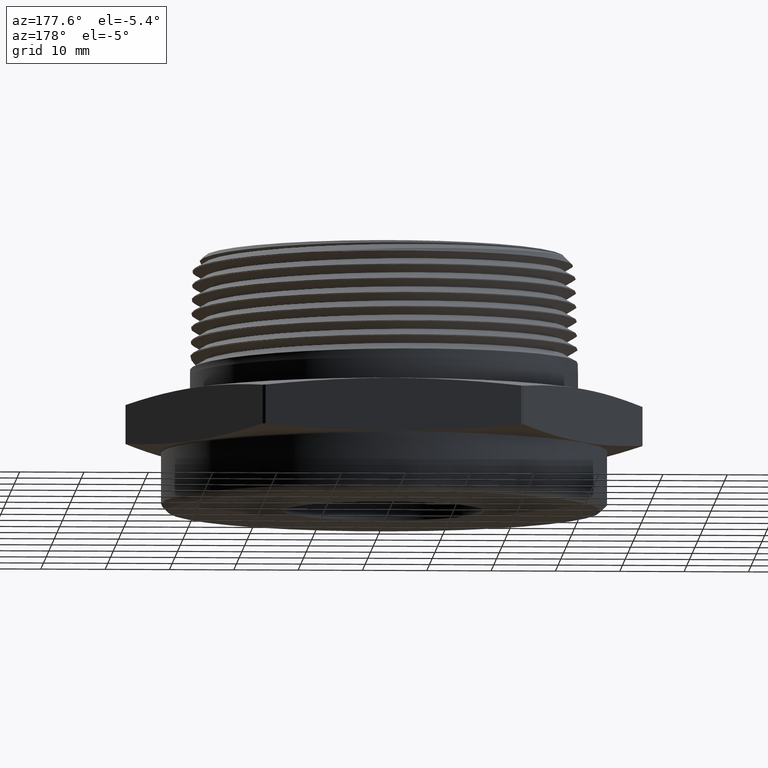
[diagram: clean part render]
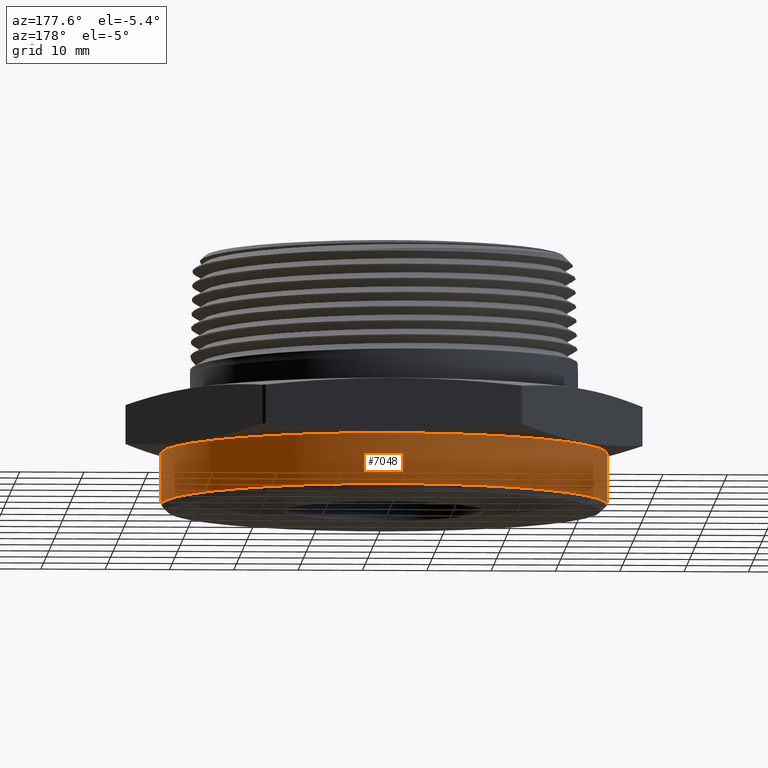
[diagram: same view with one face highlighted and labeled with its STEP entity id]
A machine part, auxiliary view. The second image highlights one B-rep face of the part: STEP entity #7048.
In plain terms, the highlighted cylindrical surface (partial cylindrical patch) has radius 34.671 mm, axis along (0, 0, 1).
Its self-contained STEP definition (entity closure, byte-faithful):
#402 = AXIS2_PLACEMENT_3D ( 'NONE', #5405, #5406, #5407 ) ;
#2903 = ORIENTED_EDGE ( 'NONE', *, *, #4848, .T. ) ;
#2904 = ORIENTED_EDGE ( 'NONE', *, *, #7059, .T. ) ;
#3046 = VECTOR ( 'NONE', #6785, 39.37007874015748100 ) ;
#3200 = VERTEX_POINT ( 'NONE', #8013 ) ;
#3204 = VERTEX_POINT ( 'NONE', #8005 ) ;
#3206 = VERTEX_POINT ( 'NONE', #7997 ) ;
#3207 = VERTEX_POINT ( 'NONE', #8008 ) ;
#3357 = EDGE_LOOP ( 'NONE', ( #2903, #2904, #7953, #7972 ) ) ;
#4848 = EDGE_CURVE ( 'NONE', #3207, #3206, #7125, .T. ) ;
#5405 = CARTESIAN_POINT ( 'NONE',  ( 0.0000000000000000000, 0.0000000000000000000, -0.3199999999999985100 ) ) ;
#5406 = DIRECTION ( 'NONE',  ( 0.0000000000000000000, 0.0000000000000000000, 1.000000000000000000 ) ) ;
#5407 = DIRECTION ( 'NONE',  ( -1.000000000000000000, 0.0000000000000000000, 0.0000000000000000000 ) ) ;
#5511 = AXIS2_PLACEMENT_3D ( 'NONE', #6759, #6760, #6758 ) ;
#5519 = AXIS2_PLACEMENT_3D ( 'NONE', #6795, #6796, #6797 ) ;
#6758 = DIRECTION ( 'NONE',  ( 1.000000000000000000, 0.0000000000000000000, 0.0000000000000000000 ) ) ;
#6759 = CARTESIAN_POINT ( 'NONE',  ( 0.0000000000000000000, 0.0000000000000000000, -0.3599999999999999900 ) ) ;
#6760 = DIRECTION ( 'NONE',  ( -0.0000000000000000000, -0.0000000000000000000, 1.000000000000000000 ) ) ;
#6781 = CARTESIAN_POINT ( 'NONE',  ( 1.365000000000000000, 0.0000000000000000000, -0.3599999999999999900 ) ) ;
#6785 = DIRECTION ( 'NONE',  ( -0.0000000000000000000, -0.0000000000000000000, 1.000000000000000000 ) ) ;
#6789 = DIRECTION ( 'NONE',  ( -0.0000000000000000000, -0.0000000000000000000, 1.000000000000000000 ) ) ;
#6790 = CARTESIAN_POINT ( 'NONE',  ( -1.365000000000000000, 1.671642880836137200E-016, -0.3599999999999999900 ) ) ;
#6795 = CARTESIAN_POINT ( 'NONE',  ( 0.0000000000000000000, 0.0000000000000000000, -0.008097840331950403200 ) ) ;
#6796 = DIRECTION ( 'NONE',  ( -6.274932739761922300E-017, -0.0000000000000000000, -1.000000000000000000 ) ) ;
#6797 = DIRECTION ( 'NONE',  ( -1.000000000000000000, 0.0000000000000000000, 6.254230754725877600E-017 ) ) ;
#7048 = ADVANCED_FACE ( 'NONE', ( #7241 ), #7244, .T. ) ;
#7059 = EDGE_CURVE ( 'NONE', #3206, #3200, #7252, .T. ) ;
#7060 = EDGE_CURVE ( 'NONE', #3200, #3204, #7255, .T. ) ;
#7061 = EDGE_CURVE ( 'NONE', #3207, #3204, #8019, .T. ) ;
#7125 = CIRCLE ( 'NONE', #402, 1.365000000000000000 ) ;
#7241 = FACE_OUTER_BOUND ( 'NONE', #3357, .T. ) ;
#7244 = CYLINDRICAL_SURFACE ( 'NONE', #5511, 1.365000000000000000 ) ;
#7252 = LINE ( 'NONE', #6790, #3046 ) ;
#7255 = CIRCLE ( 'NONE', #5519, 1.365000000000000000 ) ;
#7953 = ORIENTED_EDGE ( 'NONE', *, *, #7060, .T. ) ;
#7972 = ORIENTED_EDGE ( 'NONE', *, *, #7061, .F. ) ;
#7997 = CARTESIAN_POINT ( 'NONE',  ( -1.365000000000000000, 1.671642880836137200E-016, -0.3199999999999985100 ) ) ;
#8005 = CARTESIAN_POINT ( 'NONE',  ( 1.365000000000000000, 0.0000000000000000000, -0.008097840331950488200 ) ) ;
#8008 = CARTESIAN_POINT ( 'NONE',  ( 1.365000000000000000, 0.0000000000000000000, -0.3199999999999985100 ) ) ;
#8013 = CARTESIAN_POINT ( 'NONE',  ( -1.365000000000000000, 1.671642880836137200E-016, -0.008097840331950318200 ) ) ;
#8019 = LINE ( 'NONE', #6781, #8020 ) ;
#8020 = VECTOR ( 'NONE', #6789, 39.37007874015748100 ) ;